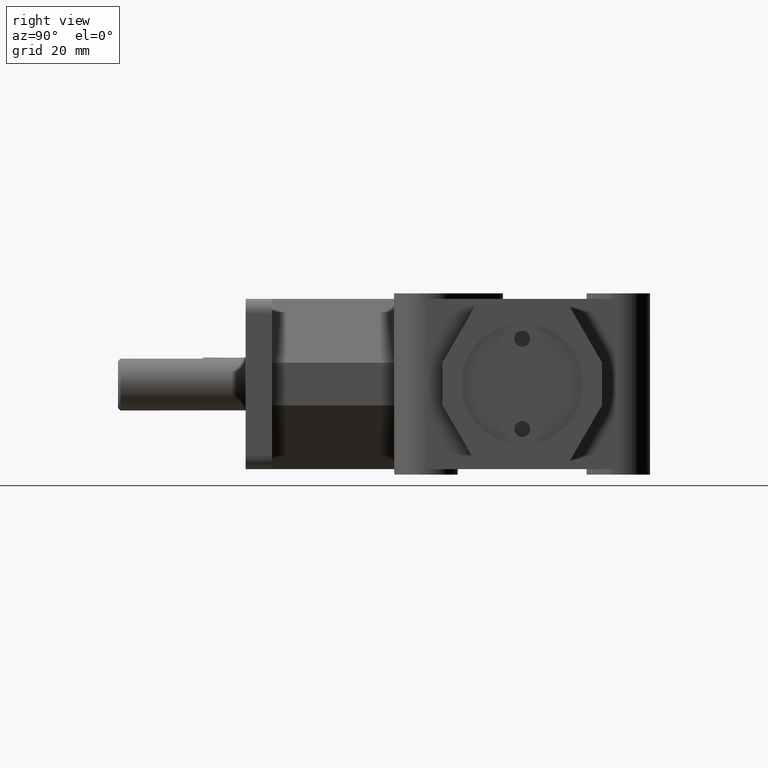
[diagram: clean part render]
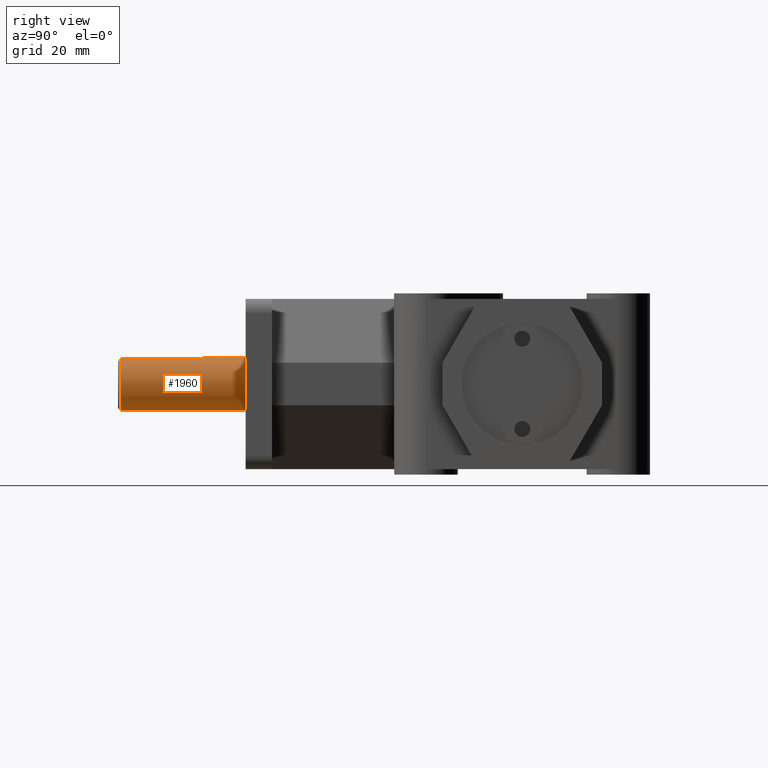
[diagram: same view with one face highlighted and labeled with its STEP entity id]
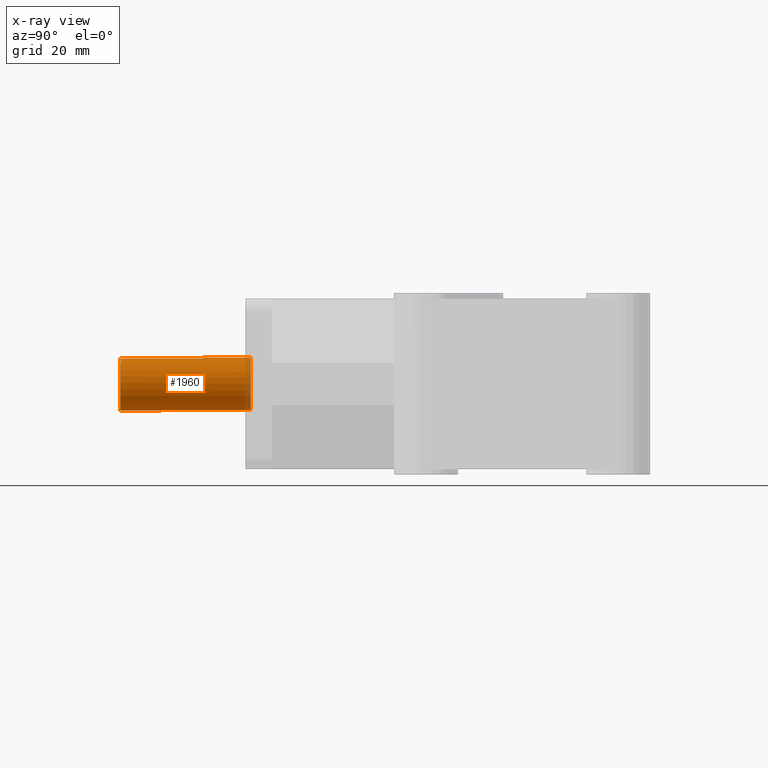
[diagram: x-ray of the same camera — body ghosted, the highlighted face saturated]
A machine part, right view. The second image highlights one B-rep face of the part: STEP entity #1960.
The next image is the same camera in x-ray: the body ghosted, the highlighted face saturated — about 4% of this face is hidden behind the body in this view.
In plain terms, the highlighted cylindrical surface (bore or boss wall) has radius 7.9375 mm, axis along (0, -1, 0).
Its self-contained STEP definition (entity closure, byte-faithful):
#178=FACE_OUTER_BOUND('',#307,.T.);
#307=EDGE_LOOP('',(#1574,#1575,#1576,#1577,#1578,#1579,#1580,#1581));
#495=LINE('',#3174,#686);
#496=LINE('',#3177,#687);
#497=LINE('',#3178,#688);
#686=VECTOR('',#2561,1.);
#687=VECTOR('',#2564,1.);
#688=VECTOR('',#2565,0.3125);
#785=CIRCLE('',#2071,0.3125);
#822=CIRCLE('',#2140,0.3125);
#823=CIRCLE('',#2141,0.3125);
#825=CIRCLE('',#2144,0.3125);
#870=VERTEX_POINT('',#2878);
#980=VERTEX_POINT('',#3159);
#981=VERTEX_POINT('',#3163);
#982=VERTEX_POINT('',#3165);
#984=VERTEX_POINT('',#3173);
#985=VERTEX_POINT('',#3175);
#1064=EDGE_CURVE('',#870,#870,#785,.T.);
#1204=EDGE_CURVE('',#980,#981,#822,.T.);
#1205=EDGE_CURVE('',#981,#982,#823,.T.);
#1208=EDGE_CURVE('',#980,#984,#495,.T.);
#1209=EDGE_CURVE('',#984,#985,#825,.T.);
#1210=EDGE_CURVE('',#985,#982,#496,.T.);
#1211=EDGE_CURVE('',#981,#870,#497,.T.);
#1574=ORIENTED_EDGE('',*,*,#1204,.F.);
#1575=ORIENTED_EDGE('',*,*,#1208,.T.);
#1576=ORIENTED_EDGE('',*,*,#1209,.T.);
#1577=ORIENTED_EDGE('',*,*,#1210,.T.);
#1578=ORIENTED_EDGE('',*,*,#1205,.F.);
#1579=ORIENTED_EDGE('',*,*,#1211,.T.);
#1580=ORIENTED_EDGE('',*,*,#1064,.F.);
#1581=ORIENTED_EDGE('',*,*,#1211,.F.);
#1894=CYLINDRICAL_SURFACE('',#2143,0.3125);
#1960=ADVANCED_FACE('',(#178),#1894,.T.);
#2071=AXIS2_PLACEMENT_3D('',#2879,#2313,#2314);
#2140=AXIS2_PLACEMENT_3D('',#3164,#2553,#2554);
#2141=AXIS2_PLACEMENT_3D('',#3166,#2555,#2556);
#2143=AXIS2_PLACEMENT_3D('',#3172,#2559,#2560);
#2144=AXIS2_PLACEMENT_3D('',#3176,#2562,#2563);
#2313=DIRECTION('center_axis',(0.,1.,0.));
#2314=DIRECTION('ref_axis',(1.,0.,0.));
#2553=DIRECTION('center_axis',(0.,-1.,0.));
#2554=DIRECTION('ref_axis',(1.,0.,0.));
#2555=DIRECTION('center_axis',(0.,-1.,0.));
#2556=DIRECTION('ref_axis',(1.,0.,0.));
#2559=DIRECTION('center_axis',(0.,-1.,0.));
#2560=DIRECTION('ref_axis',(1.,0.,0.));
#2561=DIRECTION('',(0.,1.,0.));
#2562=DIRECTION('center_axis',(0.,1.,0.));
#2563=DIRECTION('ref_axis',(1.,0.,0.));
#2564=DIRECTION('',(0.,-1.,0.));
#2565=DIRECTION('',(0.,1.,0.));
#2878=CARTESIAN_POINT('',(-0.3125,0.0599999999999999,-3.82702124733548E-17));
#2879=CARTESIAN_POINT('Origin',(0.,0.0599999999999999,0.));
#3159=CARTESIAN_POINT('',(-0.09375,-1.47,0.298106000442796));
#3163=CARTESIAN_POINT('',(-0.3125,-1.47,-3.82702124733548E-17));
#3164=CARTESIAN_POINT('Origin',(0.,-1.47,0.));
#3165=CARTESIAN_POINT('',(0.09375,-1.47,0.298106000442796));
#3166=CARTESIAN_POINT('Origin',(0.,-1.47,0.));
#3172=CARTESIAN_POINT('Origin',(0.,0.,0.));
#3173=CARTESIAN_POINT('',(-0.09375,-0.5,0.298106000442796));
#3174=CARTESIAN_POINT('',(-0.09375,0.,0.298106000442796));
#3175=CARTESIAN_POINT('',(0.09375,-0.5,0.298106000442796));
#3176=CARTESIAN_POINT('Origin',(0.,-0.5,0.));
#3177=CARTESIAN_POINT('',(0.09375,0.,0.298106000442796));
#3178=CARTESIAN_POINT('',(-0.3125,0.,-3.82702124733548E-17));